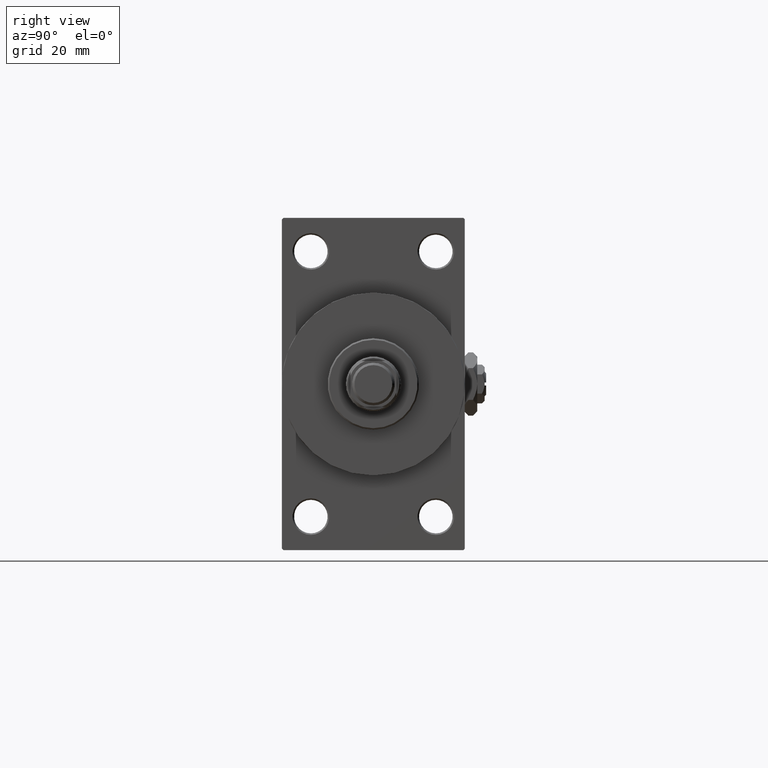
[diagram: clean part render]
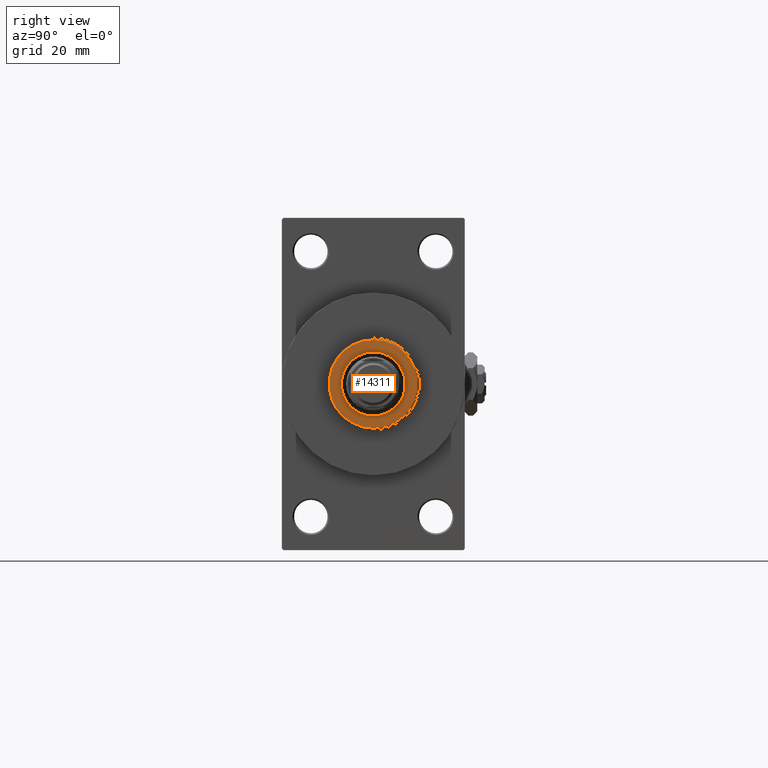
[diagram: same view with one face highlighted and labeled with its STEP entity id]
A machine part, right view. The second image highlights one B-rep face of the part: STEP entity #14311.
In plain terms, the highlighted planar face has unit normal (1, -0, -0).
Its self-contained STEP definition (entity closure, byte-faithful):
#1351 = CIRCLE ( 'NONE', #19031, 14.49999999999999112 ) ;
#2356 = VERTEX_POINT ( 'NONE', #7043 ) ;
#2700 = CIRCLE ( 'NONE', #4317, 10.50000000000000000 ) ;
#4317 = AXIS2_PLACEMENT_3D ( 'NONE', #20981, #17933, #9663 ) ;
#6173 = CARTESIAN_POINT ( 'NONE',  ( 0.000000000000000000, 0.000000000000000000, 51.25999999999999801 ) ) ;
#7043 = CARTESIAN_POINT ( 'NONE',  ( -10.50000000000000000, 1.285879139104720831E-15, 51.25999999999999801 ) ) ;
#7385 = ORIENTED_EDGE ( 'NONE', *, *, #13619, .F. ) ;
#9525 = DIRECTION ( 'NONE',  ( 1.000000000000000000, 0.000000000000000000, -0.000000000000000000 ) ) ;
#9663 = DIRECTION ( 'NONE',  ( 1.000000000000000000, 0.000000000000000000, 0.000000000000000000 ) ) ;
#13619 = EDGE_CURVE ( 'NONE', #2356, #20109, #44136, .T. ) ;
#14311 = ADVANCED_FACE ( 'NONE', ( #20352, #43729 ), #31949, .T. ) ;
#16261 = EDGE_LOOP ( 'NONE', ( #43712, #7385 ) ) ;
#17933 = DIRECTION ( 'NONE',  ( 0.000000000000000000, 0.000000000000000000, 1.000000000000000000 ) ) ;
#18521 = AXIS2_PLACEMENT_3D ( 'NONE', #39955, #25103, #36924 ) ;
#19031 = AXIS2_PLACEMENT_3D ( 'NONE', #6173, #33094, #25807 ) ;
#19869 = EDGE_CURVE ( 'NONE', #22052, #39165, #34636, .T. ) ;
#20109 = VERTEX_POINT ( 'NONE', #27119 ) ;
#20352 = FACE_BOUND ( 'NONE', #16261, .T. ) ;
#20981 = CARTESIAN_POINT ( 'NONE',  ( 0.000000000000000000, 0.000000000000000000, 51.25999999999999801 ) ) ;
#22052 = VERTEX_POINT ( 'NONE', #45967 ) ;
#22450 = CARTESIAN_POINT ( 'NONE',  ( 14.49999999999999112, 1.806354028742345013E-15, 51.25999999999999801 ) ) ;
#22557 = ORIENTED_EDGE ( 'NONE', *, *, #19869, .T. ) ;
#25103 = DIRECTION ( 'NONE',  ( 0.000000000000000000, 0.000000000000000000, 1.000000000000000000 ) ) ;
#25807 = DIRECTION ( 'NONE',  ( 1.000000000000000000, 0.000000000000000000, 0.000000000000000000 ) ) ;
#27119 = CARTESIAN_POINT ( 'NONE',  ( 10.50000000000000000, 0.000000000000000000, 51.25999999999999801 ) ) ;
#27294 = EDGE_LOOP ( 'NONE', ( #22557, #48023 ) ) ;
#28167 = CARTESIAN_POINT ( 'NONE',  ( 0.000000000000000000, 0.000000000000000000, 51.25999999999999801 ) ) ;
#29255 = DIRECTION ( 'NONE',  ( 1.000000000000000000, 0.000000000000000000, 0.000000000000000000 ) ) ;
#31949 = PLANE ( 'NONE',  #48140 ) ;
#32537 = CARTESIAN_POINT ( 'NONE',  ( 0.000000000000000000, 0.000000000000000000, 51.25999999999999801 ) ) ;
#33094 = DIRECTION ( 'NONE',  ( 0.000000000000000000, 0.000000000000000000, 1.000000000000000000 ) ) ;
#34636 = CIRCLE ( 'NONE', #18521, 14.49999999999999112 ) ;
#36924 = DIRECTION ( 'NONE',  ( 1.000000000000000000, 0.000000000000000000, 0.000000000000000000 ) ) ;
#39165 = VERTEX_POINT ( 'NONE', #22450 ) ;
#39592 = DIRECTION ( 'NONE',  ( 0.000000000000000000, 0.000000000000000000, 1.000000000000000000 ) ) ;
#39955 = CARTESIAN_POINT ( 'NONE',  ( 0.000000000000000000, 0.000000000000000000, 51.25999999999999801 ) ) ;
#41122 = EDGE_CURVE ( 'NONE', #20109, #2356, #2700, .T. ) ;
#41725 = AXIS2_PLACEMENT_3D ( 'NONE', #32537, #39592, #29255 ) ;
#43712 = ORIENTED_EDGE ( 'NONE', *, *, #41122, .F. ) ;
#43729 = FACE_OUTER_BOUND ( 'NONE', #27294, .T. ) ;
#43982 = DIRECTION ( 'NONE',  ( 0.000000000000000000, 0.000000000000000000, 1.000000000000000000 ) ) ;
#44136 = CIRCLE ( 'NONE', #41725, 10.50000000000000000 ) ;
#45967 = CARTESIAN_POINT ( 'NONE',  ( -14.49999999999999112, 0.000000000000000000, 51.25999999999999801 ) ) ;
#48023 = ORIENTED_EDGE ( 'NONE', *, *, #48050, .T. ) ;
#48050 = EDGE_CURVE ( 'NONE', #39165, #22052, #1351, .T. ) ;
#48140 = AXIS2_PLACEMENT_3D ( 'NONE', #28167, #43982, #9525 ) ;